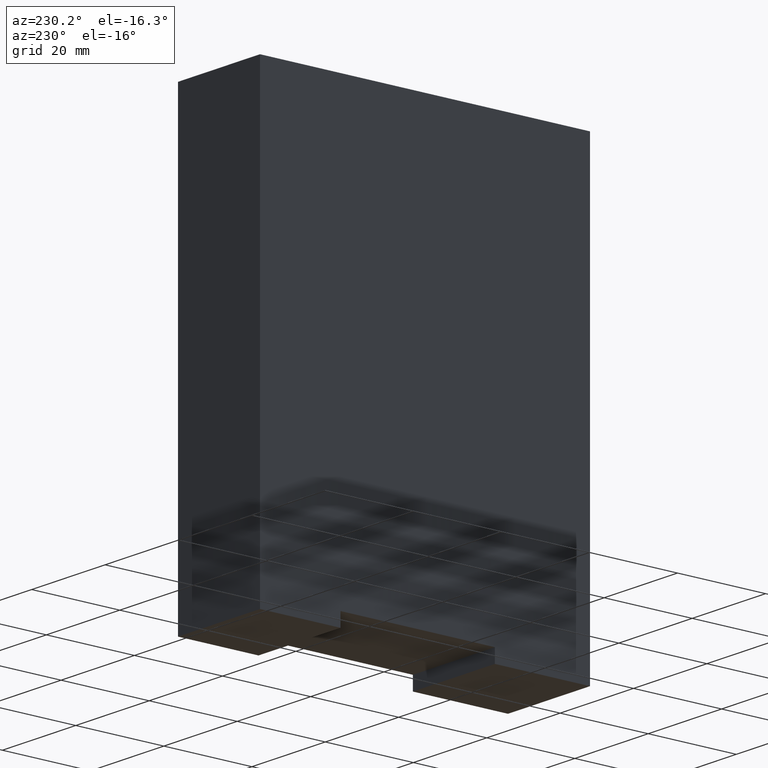
[diagram: clean part render]
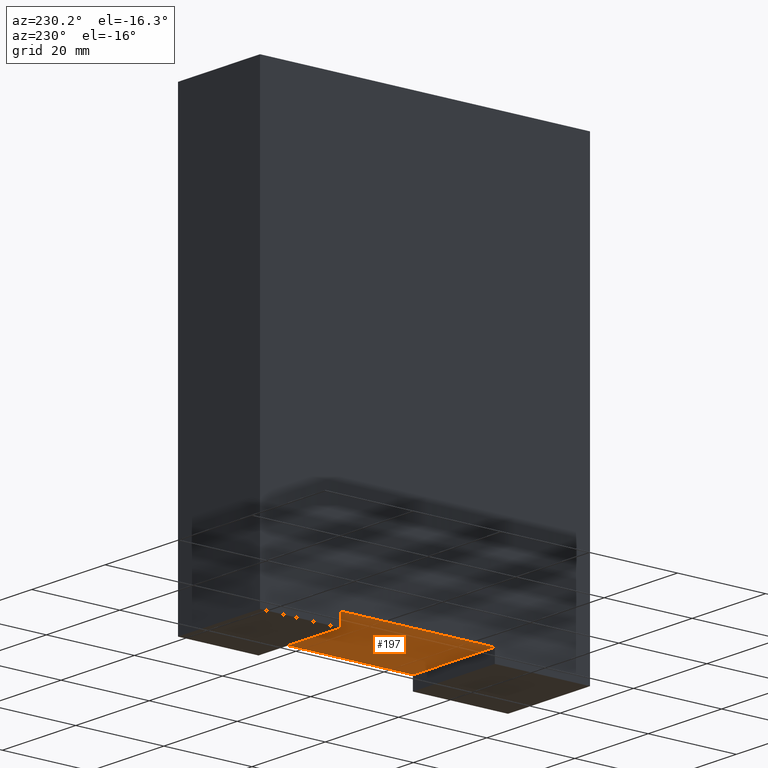
[diagram: same view with one face highlighted and labeled with its STEP entity id]
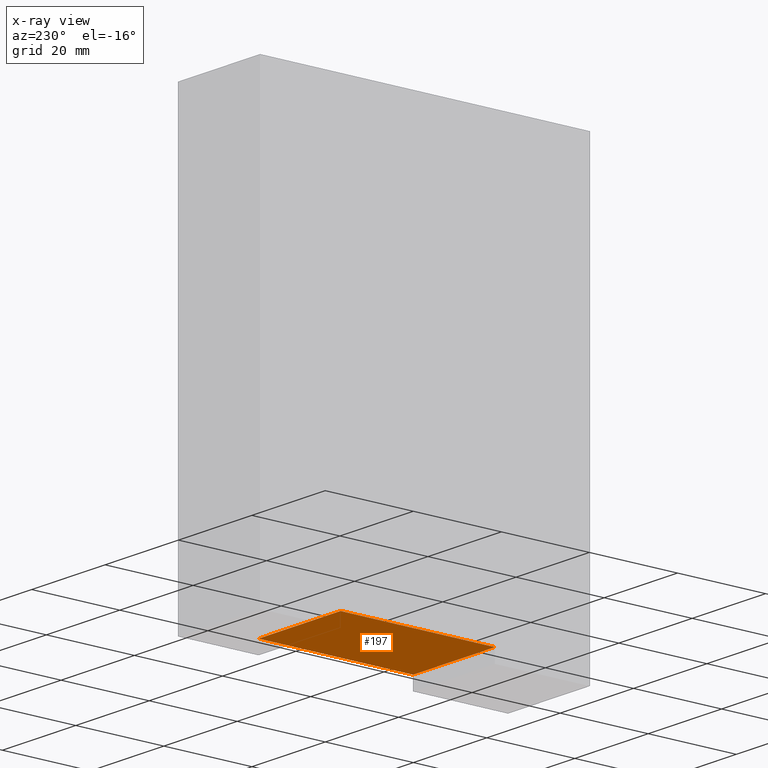
[diagram: x-ray of the same camera — body ghosted, the highlighted face saturated]
A machine part, auxiliary view. The second image highlights one B-rep face of the part: STEP entity #197.
The next image is the same camera in x-ray: the body ghosted, the highlighted face saturated — about 0% of this face is hidden behind the body in this view.
In plain terms, the highlighted planar face has unit normal (0, 0, 1).
Its self-contained STEP definition (entity closure, byte-faithful):
#30=DIRECTION('',(0.E0,-1.E0,0.E0));
#31=VECTOR('',#30,1.38E0);
#32=CARTESIAN_POINT('',(-4.4E-1,7.55E-1,-3.85E0));
#33=LINE('',#32,#31);
#34=DIRECTION('',(-1.E0,0.E0,0.E0));
#35=VECTOR('',#34,8.8E-1);
#36=CARTESIAN_POINT('',(4.4E-1,7.55E-1,-3.85E0));
#37=LINE('',#36,#35);
#38=DIRECTION('',(-1.E0,0.E0,0.E0));
#39=VECTOR('',#38,8.8E-1);
#40=CARTESIAN_POINT('',(4.4E-1,-6.25E-1,-3.85E0));
#41=LINE('',#40,#39);
#78=DIRECTION('',(0.E0,-1.E0,0.E0));
#79=VECTOR('',#78,1.38E0);
#80=CARTESIAN_POINT('',(4.4E-1,7.55E-1,-3.85E0));
#81=LINE('',#80,#79);
#115=CARTESIAN_POINT('',(-4.4E-1,7.55E-1,-3.85E0));
#117=VERTEX_POINT('',#115);
#118=CARTESIAN_POINT('',(-4.4E-1,-6.25E-1,-3.85E0));
#119=VERTEX_POINT('',#118);
#122=CARTESIAN_POINT('',(4.4E-1,7.55E-1,-3.85E0));
#123=VERTEX_POINT('',#122);
#124=CARTESIAN_POINT('',(4.4E-1,-6.25E-1,-3.85E0));
#125=VERTEX_POINT('',#124);
#184=CARTESIAN_POINT('',(4.4E-1,7.55E-1,-3.85E0));
#185=DIRECTION('',(0.E0,0.E0,1.E0));
#186=DIRECTION('',(0.E0,-1.E0,0.E0));
#187=AXIS2_PLACEMENT_3D('',#184,#185,#186);
#188=PLANE('',#187);
#189=ORIENTED_EDGE('',*,*,#164,.T.);
#191=ORIENTED_EDGE('',*,*,#190,.F.);
#193=ORIENTED_EDGE('',*,*,#192,.F.);
#194=ORIENTED_EDGE('',*,*,#175,.T.);
#195=EDGE_LOOP('',(#189,#191,#193,#194));
#196=FACE_OUTER_BOUND('',#195,.F.);
#197=ADVANCED_FACE('',(#196),#188,.F.);
#164=EDGE_CURVE('',#117,#119,#33,.T.);
#175=EDGE_CURVE('',#123,#117,#37,.T.);
#190=EDGE_CURVE('',#125,#119,#41,.T.);
#192=EDGE_CURVE('',#123,#125,#81,.T.);